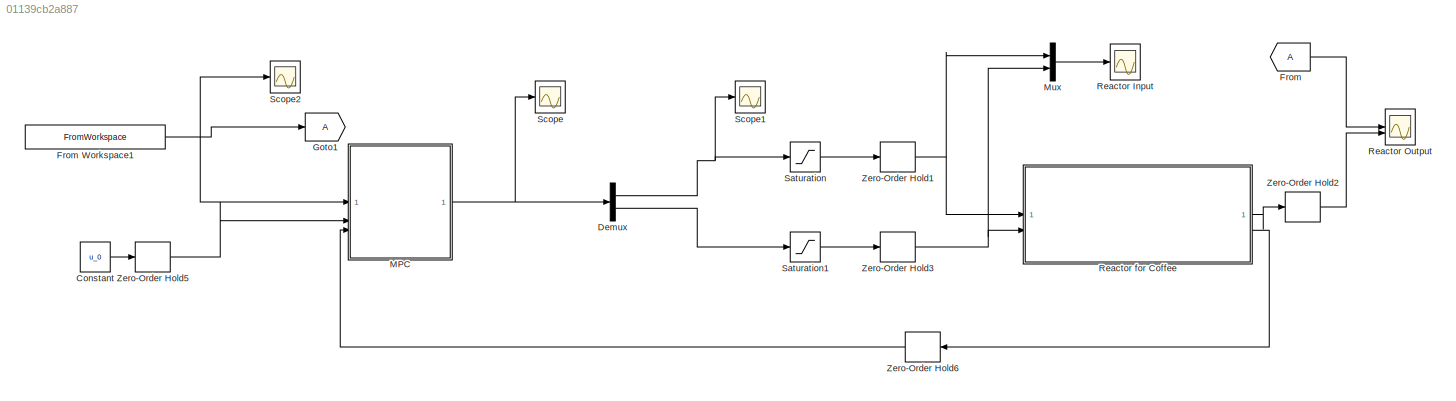
MODEL slx_01139cb2a887
KIND model
CONFIG AbsTol = auto
CONFIG EnableMultiTasking = off
CONFIG FixedStep = simulationParameters.Tint
CONFIG MaxStep = auto
CONFIG MinStep = auto
CONFIG RelTol = 1e-3
CONFIG SampleTimeConstraint = Unconstrained
CONFIG SolverName = ode4
CONFIG StartTime = 0.0
CONFIG StopTime = simulationParameters.Tsim
BLOCK [Constant] Constant
  Value = u_0
BLOCK [Demux] Demux
  Outputs = 2
BLOCK [From] From
BLOCK [FromWorkspace] From Workspace1
  OutputAfterFinalValue = Holding final value
  VariableName = simulationParameters.y_target
BLOCK [Goto] Goto1
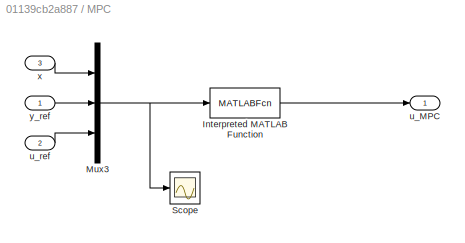
BLOCK [SubSystem] MPC
BLOCK [MATLABFcn] MPC/Interpreted MATLAB Function
  MATLABFcn = compute_MPC_control(u(1:n),u(n+1:n+p),u(n+p+1:n+p+m_input),condensedMatrices,m_input,PH)
  Output1D = off
  OutputDimensions = m_input
BLOCK [Mux] MPC/Mux3
  DisplayOption = bar
  Inputs = 3
BLOCK [Scope] MPC/Scope
  Floating = off
  NumInputPorts = 1
  ScopeSpecificationString = Simulink.scopes.TimeScopeBlockCfg('CurrentConfiguration', extmgr.ConfigurationSet(extmgr.Configuration('Core','General UI',true),extmgr.Configuration('Core','Source UI',true),extmgr.Configuration('Sources','WiredSimulink',true,'DataLoggingVariableName','ScopeData3'),extmgr.Configuration('Visuals','Time Domain',true,'SerializedDisplays',{struct('MinYLimReal','-3.125','MaxYLimReal','28.125','YLabelR...<+1488ch>
BLOCK [Outport] MPC/u_MPC
BLOCK [Inport] MPC/u_ref
  Port = 2
BLOCK [Inport] MPC/x
  Port = 3
BLOCK [Inport] MPC/y_ref
BLOCK [Mux] Mux
  DisplayOption = bar
  Inputs = 2
BLOCK [Scope] Reactor Input
  Floating = off
  NumInputPorts = 1
  ScopeSpecificationString = Simulink.scopes.TimeScopeBlockCfg('CurrentConfiguration', extmgr.ConfigurationSet(extmgr.Configuration('Core','General UI',true),extmgr.Configuration('Core','Source UI',true),extmgr.Configuration('Sources','WiredSimulink',true,'DataLogging',true,'DataLoggingVariableName','reactorInput','DataLoggingSaveFormat','StructureWithTime'),extmgr.Configuration('Visuals','Time Domain',true,'SerializedDisplay...<+1586ch>
BLOCK [Scope] Reactor Output
  Floating = off
  NumInputPorts = 2
  ScopeSpecificationString = Simulink.scopes.TimeScopeBlockCfg('CurrentConfiguration', extmgr.ConfigurationSet(extmgr.Configuration('Core','General UI',true),extmgr.Configuration('Core','Source UI',true),extmgr.Configuration('Sources','WiredSimulink',true,'DataLogging',true,'DataLoggingVariableName','reactorOutput','DataLoggingSaveFormat','StructureWithTime'),extmgr.Configuration('Visuals','Time Domain',true,'SerializedDispla...<+1504ch>
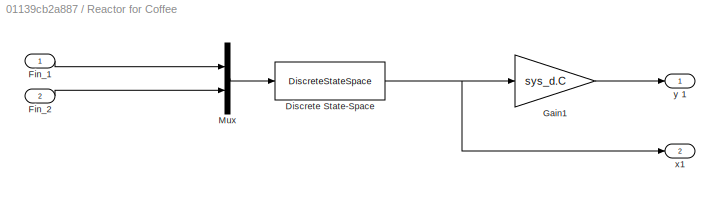
BLOCK [SubSystem] Reactor for Coffee
BLOCK [DiscreteStateSpace] Reactor for Coffee/Discrete State-Space
  A = sys_d.A
  B = sys_d.B
  C = sys_d.C
  D = sys_d.D
  InitialCondition = simulationParameters.Reactor_parameters.x_0
  SampleTime = -1
BLOCK [Inport] Reactor for Coffee/Fin_1
BLOCK [Inport] Reactor for Coffee/Fin_2
  Port = 2
BLOCK [Gain] Reactor for Coffee/Gain1
  Gain = sys_d.C
BLOCK [Mux] Reactor for Coffee/Mux
  DisplayOption = bar
  Inputs = 2
BLOCK [Outport] Reactor for Coffee/x1
  Port = 2
BLOCK [Outport] Reactor for Coffee/y 1
BLOCK [Saturate] Saturation
  LowerLimit = simulationParameters.Fin1_min
  UpperLimit = simulationParameters.Fin1_max
BLOCK [Saturate] Saturation1
  LowerLimit = simulationParameters.Fin2_min
  UpperLimit = simulationParameters.Fin2_max
BLOCK [Scope] Scope
  Floating = off
  NumInputPorts = 1
  ScopeSpecificationString = Simulink.scopes.TimeScopeBlockCfg('CurrentConfiguration', extmgr.ConfigurationSet(extmgr.Configuration('Core','General UI',true),extmgr.Configuration('Core','Source UI',true),extmgr.Configuration('Sources','WiredSimulink',true,'DataLoggingVariableName','ScopeData1'),extmgr.Configuration('Visuals','Time Domain',true,'SerializedDisplays',{struct('MinYLimReal','-2.9975','MaxYLimReal','26.97752','YLab...<+1463ch>
BLOCK [Scope] Scope1
  Floating = off
  NumInputPorts = 1
  ScopeSpecificationString = Simulink.scopes.TimeScopeBlockCfg('CurrentConfiguration', extmgr.ConfigurationSet(extmgr.Configuration('Core','General UI',true),extmgr.Configuration('Core','Source UI',true),extmgr.Configuration('Sources','WiredSimulink',true,'DataLoggingVariableName','ScopeData2'),extmgr.Configuration('Visuals','Time Domain',true,'SerializedDisplays',{struct('MinYLimReal','-2.9975','MaxYLimReal','26.97752','YLab...<+1457ch>
BLOCK [Scope] Scope2
  Floating = off
  NumInputPorts = 1
  ScopeSpecificationString = Simulink.scopes.TimeScopeBlockCfg('CurrentConfiguration', extmgr.ConfigurationSet(extmgr.Configuration('Core','General UI',true),extmgr.Configuration('Core','Source UI',true),extmgr.Configuration('Sources','WiredSimulink',true,'DataLoggingVariableName','ScopeData4'),extmgr.Configuration('Visuals','Time Domain',true,'SerializedDisplays',{struct('MinYLimReal','11.875','MaxYLimReal','43.125','YLabelR...<+1453ch>
BLOCK [ZeroOrderHold] Zero-Order Hold1
  SampleTime = simulationParameters.Ts
BLOCK [ZeroOrderHold] Zero-Order Hold2
  SampleTime = simulationParameters.Ts
BLOCK [ZeroOrderHold] Zero-Order Hold3
  SampleTime = simulationParameters.Ts
BLOCK [ZeroOrderHold] Zero-Order Hold5
  SampleTime = simulationParameters.Ts
BLOCK [ZeroOrderHold] Zero-Order Hold6
  SampleTime = simulationParameters.Ts
LINE Constant:1 -> Zero-Order Hold5:1
NET Demux:1 -> Saturation:1, Scope1:1
LINE Demux:2 -> Saturation1:1
NET From Workspace1:1 -> Goto1:1, MPC:1, Scope2:1
LINE From:1 -> Reactor Output:1
LINE MPC/Interpreted MATLAB Function:1 -> MPC/u_MPC:1
NET MPC/Mux3:1 -> MPC/Interpreted MATLAB Function:1, MPC/Scope:1
LINE MPC/u_ref:1 -> MPC/Mux3:3
LINE MPC/x:1 -> MPC/Mux3:1
LINE MPC/y_ref:1 -> MPC/Mux3:2
NET MPC:1 -> Demux:1, Scope:1
LINE Mux:1 -> Reactor Input:1
NET Reactor for Coffee/Discrete State-Space:1 -> Reactor for Coffee/Gain1:1, Reactor for Coffee/x1:1
LINE Reactor for Coffee/Fin_1:1 -> Reactor for Coffee/Mux:1
LINE Reactor for Coffee/Fin_2:1 -> Reactor for Coffee/Mux:2
LINE Reactor for Coffee/Gain1:1 -> Reactor for Coffee/y 1:1
LINE Reactor for Coffee/Mux:1 -> Reactor for Coffee/Discrete State-Space:1
LINE Reactor for Coffee:1 -> Zero-Order Hold2:1
LINE Reactor for Coffee:2 -> Zero-Order Hold6:1
LINE Saturation1:1 -> Zero-Order Hold3:1
LINE Saturation:1 -> Zero-Order Hold1:1
NET Zero-Order Hold1:1 -> Mux:1, Reactor for Coffee:1
LINE Zero-Order Hold2:1 -> Reactor Output:2
NET Zero-Order Hold3:1 -> Mux:2, Reactor for Coffee:2
LINE Zero-Order Hold5:1 -> MPC:2
LINE Zero-Order Hold6:1 -> MPC:3
note: NET lines group one-source signal fan-out (src -> all destinations, sorted); 1:1 wires keep LINE
